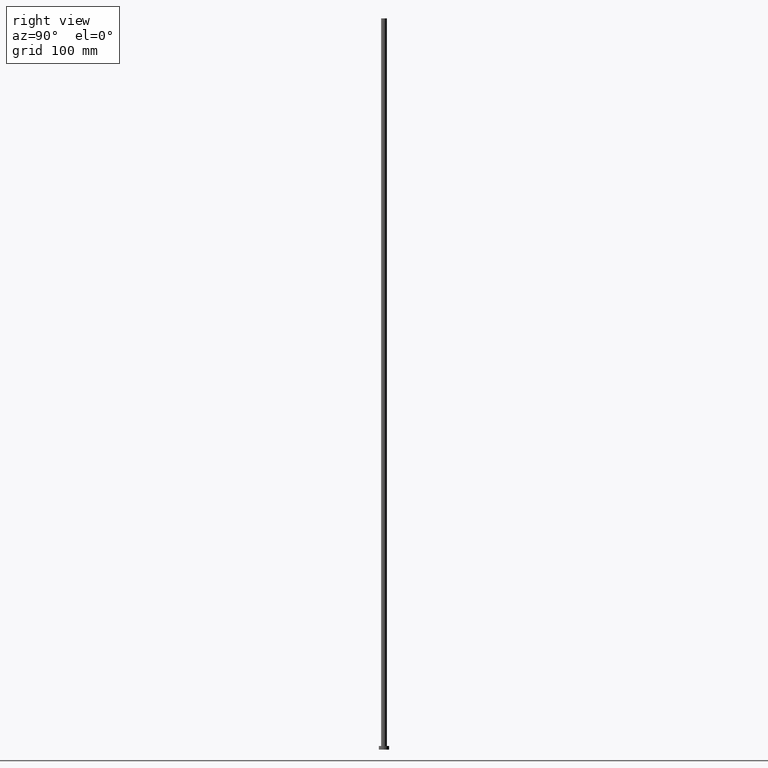
[diagram: clean part render]
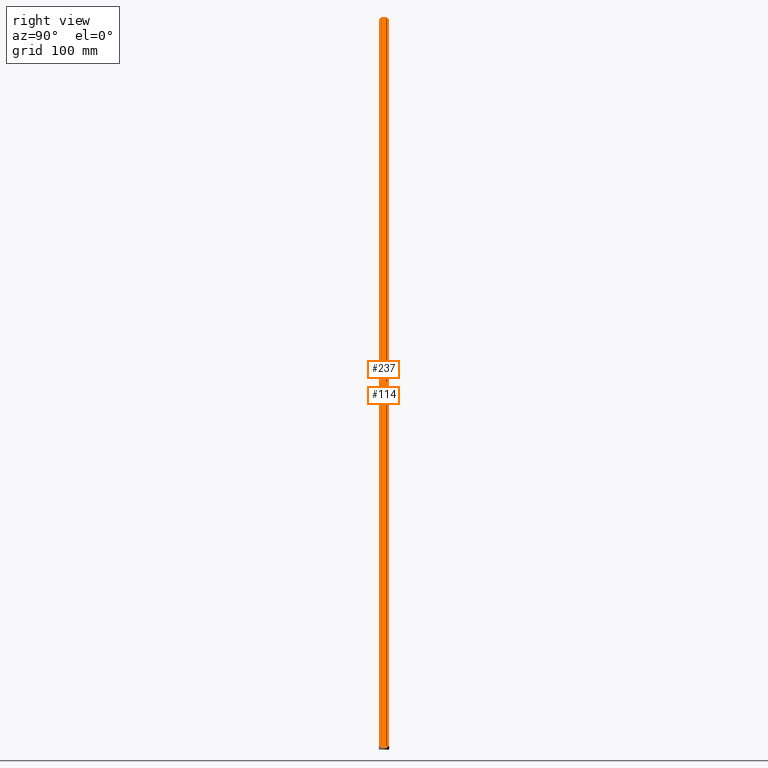
[diagram: same view with one multi-face feature highlighted, each face labeled with its STEP entity id]
A machine part, right view. The highlighted faces form ONE feature: a constant-radius fillet chain: 2 tangent blend faces with common blend radius 4 mm. The faces share edges in the B-rep.
Their STEP definitions:
[1] entity #237 (Cylinder):
#1 = ORIENTED_EDGE ( 'NONE', *, *, #172, .T. ) ;
#5 = CARTESIAN_POINT ( 'NONE',  ( 4.000000000000000000, 4.898587196589411843E-16, 5.000000000000000000 ) ) ;
#10 = ORIENTED_EDGE ( 'NONE', *, *, #119, .F. ) ;
#24 = CARTESIAN_POINT ( 'NONE',  ( -4.000000000000000000, 0.000000000000000000, 1000.000000000000000 ) ) ;
#25 = EDGE_CURVE ( 'NONE', #35, #29, #95, .T. ) ;
#27 = EDGE_CURVE ( 'NONE', #181, #82, #229, .T. ) ;
#29 = VERTEX_POINT ( 'NONE', #121 ) ;
#33 = DIRECTION ( 'NONE',  ( 0.000000000000000000, 0.000000000000000000, 1.000000000000000000 ) ) ;
#35 = VERTEX_POINT ( 'NONE', #211 ) ;
#44 = DIRECTION ( 'NONE',  ( -1.000000000000000000, 0.000000000000000000, 0.000000000000000000 ) ) ;
#50 = ORIENTED_EDGE ( 'NONE', *, *, #27, .T. ) ;
#57 = DIRECTION ( 'NONE',  ( 1.000000000000000000, 0.000000000000000000, 0.000000000000000000 ) ) ;
#68 = FACE_OUTER_BOUND ( 'NONE', #213, .T. ) ;
#82 = VERTEX_POINT ( 'NONE', #5 ) ;
#87 = AXIS2_PLACEMENT_3D ( 'NONE', #227, #33, #185 ) ;
#88 = AXIS2_PLACEMENT_3D ( 'NONE', #90, #113, #44 ) ;
#90 = CARTESIAN_POINT ( 'NONE',  ( 0.000000000000000000, 0.000000000000000000, 1000.000000000000000 ) ) ;
#95 = CIRCLE ( 'NONE', #221, 4.000000000000000000 ) ;
#97 = CARTESIAN_POINT ( 'NONE',  ( 4.000000000000000000, 4.898587196589411843E-16, 1000.000000000000000 ) ) ;
#111 = DIRECTION ( 'NONE',  ( -0.000000000000000000, -0.000000000000000000, -1.000000000000000000 ) ) ;
#113 = DIRECTION ( 'NONE',  ( -0.000000000000000000, -0.000000000000000000, -1.000000000000000000 ) ) ;
#116 = VECTOR ( 'NONE', #111, 1000.000000000000000 ) ;
#119 = EDGE_CURVE ( 'NONE', #29, #82, #246, .T. ) ;
#121 = CARTESIAN_POINT ( 'NONE',  ( 4.000000000000000000, 4.898587196589411843E-16, 1000.000000000000000 ) ) ;
#168 = VECTOR ( 'NONE', #248, 1000.000000000000000 ) ;
#172 = EDGE_CURVE ( 'NONE', #35, #181, #224, .T. ) ;
#181 = VERTEX_POINT ( 'NONE', #242 ) ;
#182 = DIRECTION ( 'NONE',  ( 0.000000000000000000, 0.000000000000000000, 1.000000000000000000 ) ) ;
#185 = DIRECTION ( 'NONE',  ( 1.000000000000000000, 0.000000000000000000, 0.000000000000000000 ) ) ;
#211 = CARTESIAN_POINT ( 'NONE',  ( -4.000000000000000000, 0.000000000000000000, 1000.000000000000000 ) ) ;
#213 = EDGE_LOOP ( 'NONE', ( #10, #253, #1, #50 ) ) ;
#221 = AXIS2_PLACEMENT_3D ( 'NONE', #233, #182, #57 ) ;
#222 = CYLINDRICAL_SURFACE ( 'NONE', #88, 4.000000000000000000 ) ;
#224 = LINE ( 'NONE', #24, #116 ) ;
#227 = CARTESIAN_POINT ( 'NONE',  ( 0.000000000000000000, 0.000000000000000000, 5.000000000000000000 ) ) ;
#229 = CIRCLE ( 'NONE', #87, 4.000000000000000000 ) ;
#233 = CARTESIAN_POINT ( 'NONE',  ( 0.000000000000000000, 0.000000000000000000, 1000.000000000000000 ) ) ;
#237 = ADVANCED_FACE ( 'NONE', ( #68 ), #222, .T. ) ;
#242 = CARTESIAN_POINT ( 'NONE',  ( -4.000000000000000000, 0.000000000000000000, 5.000000000000000000 ) ) ;
#246 = LINE ( 'NONE', #97, #168 ) ;
#248 = DIRECTION ( 'NONE',  ( -0.000000000000000000, -0.000000000000000000, -1.000000000000000000 ) ) ;
#253 = ORIENTED_EDGE ( 'NONE', *, *, #25, .F. ) ;
[2] entity #114 (Cylinder):
#5 = CARTESIAN_POINT ( 'NONE',  ( 4.000000000000000000, 4.898587196589411843E-16, 5.000000000000000000 ) ) ;
#6 = CARTESIAN_POINT ( 'NONE',  ( 0.000000000000000000, 0.000000000000000000, 5.000000000000000000 ) ) ;
#23 = AXIS2_PLACEMENT_3D ( 'NONE', #208, #115, #247 ) ;
#24 = CARTESIAN_POINT ( 'NONE',  ( -4.000000000000000000, 0.000000000000000000, 1000.000000000000000 ) ) ;
#29 = VERTEX_POINT ( 'NONE', #121 ) ;
#35 = VERTEX_POINT ( 'NONE', #211 ) ;
#45 = CARTESIAN_POINT ( 'NONE',  ( 0.000000000000000000, 0.000000000000000000, 1000.000000000000000 ) ) ;
#58 = EDGE_LOOP ( 'NONE', ( #231, #197, #226, #234 ) ) ;
#67 = DIRECTION ( 'NONE',  ( 0.000000000000000000, 0.000000000000000000, 1.000000000000000000 ) ) ;
#71 = CYLINDRICAL_SURFACE ( 'NONE', #250, 4.000000000000000000 ) ;
#74 = EDGE_CURVE ( 'NONE', #82, #181, #178, .T. ) ;
#81 = AXIS2_PLACEMENT_3D ( 'NONE', #6, #67, #206 ) ;
#82 = VERTEX_POINT ( 'NONE', #5 ) ;
#97 = CARTESIAN_POINT ( 'NONE',  ( 4.000000000000000000, 4.898587196589411843E-16, 1000.000000000000000 ) ) ;
#111 = DIRECTION ( 'NONE',  ( -0.000000000000000000, -0.000000000000000000, -1.000000000000000000 ) ) ;
#114 = ADVANCED_FACE ( 'NONE', ( #134 ), #71, .T. ) ;
#115 = DIRECTION ( 'NONE',  ( 0.000000000000000000, 0.000000000000000000, 1.000000000000000000 ) ) ;
#116 = VECTOR ( 'NONE', #111, 1000.000000000000000 ) ;
#119 = EDGE_CURVE ( 'NONE', #29, #82, #246, .T. ) ;
#121 = CARTESIAN_POINT ( 'NONE',  ( 4.000000000000000000, 4.898587196589411843E-16, 1000.000000000000000 ) ) ;
#134 = FACE_OUTER_BOUND ( 'NONE', #58, .T. ) ;
#168 = VECTOR ( 'NONE', #248, 1000.000000000000000 ) ;
#170 = CIRCLE ( 'NONE', #23, 4.000000000000000000 ) ;
#172 = EDGE_CURVE ( 'NONE', #35, #181, #224, .T. ) ;
#177 = DIRECTION ( 'NONE',  ( -0.000000000000000000, -0.000000000000000000, -1.000000000000000000 ) ) ;
#178 = CIRCLE ( 'NONE', #81, 4.000000000000000000 ) ;
#181 = VERTEX_POINT ( 'NONE', #242 ) ;
#194 = DIRECTION ( 'NONE',  ( -1.000000000000000000, 0.000000000000000000, 0.000000000000000000 ) ) ;
#197 = ORIENTED_EDGE ( 'NONE', *, *, #119, .T. ) ;
#205 = EDGE_CURVE ( 'NONE', #29, #35, #170, .T. ) ;
#206 = DIRECTION ( 'NONE',  ( 1.000000000000000000, 0.000000000000000000, 0.000000000000000000 ) ) ;
#208 = CARTESIAN_POINT ( 'NONE',  ( 0.000000000000000000, 0.000000000000000000, 1000.000000000000000 ) ) ;
#211 = CARTESIAN_POINT ( 'NONE',  ( -4.000000000000000000, 0.000000000000000000, 1000.000000000000000 ) ) ;
#224 = LINE ( 'NONE', #24, #116 ) ;
#226 = ORIENTED_EDGE ( 'NONE', *, *, #74, .T. ) ;
#231 = ORIENTED_EDGE ( 'NONE', *, *, #205, .F. ) ;
#234 = ORIENTED_EDGE ( 'NONE', *, *, #172, .F. ) ;
#242 = CARTESIAN_POINT ( 'NONE',  ( -4.000000000000000000, 0.000000000000000000, 5.000000000000000000 ) ) ;
#246 = LINE ( 'NONE', #97, #168 ) ;
#247 = DIRECTION ( 'NONE',  ( 1.000000000000000000, 0.000000000000000000, 0.000000000000000000 ) ) ;
#248 = DIRECTION ( 'NONE',  ( -0.000000000000000000, -0.000000000000000000, -1.000000000000000000 ) ) ;
#250 = AXIS2_PLACEMENT_3D ( 'NONE', #45, #177, #194 ) ;